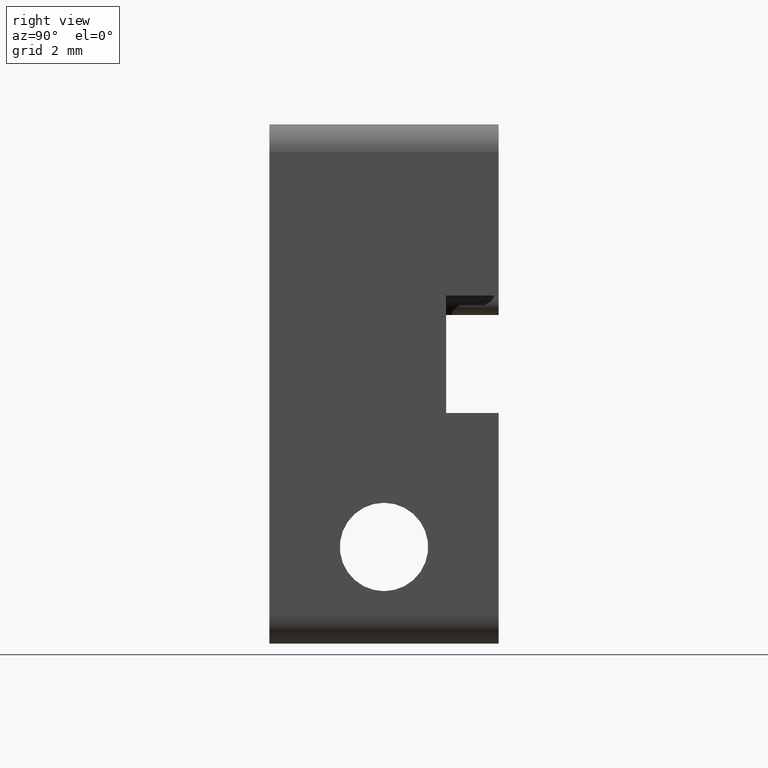
[diagram: clean part render]
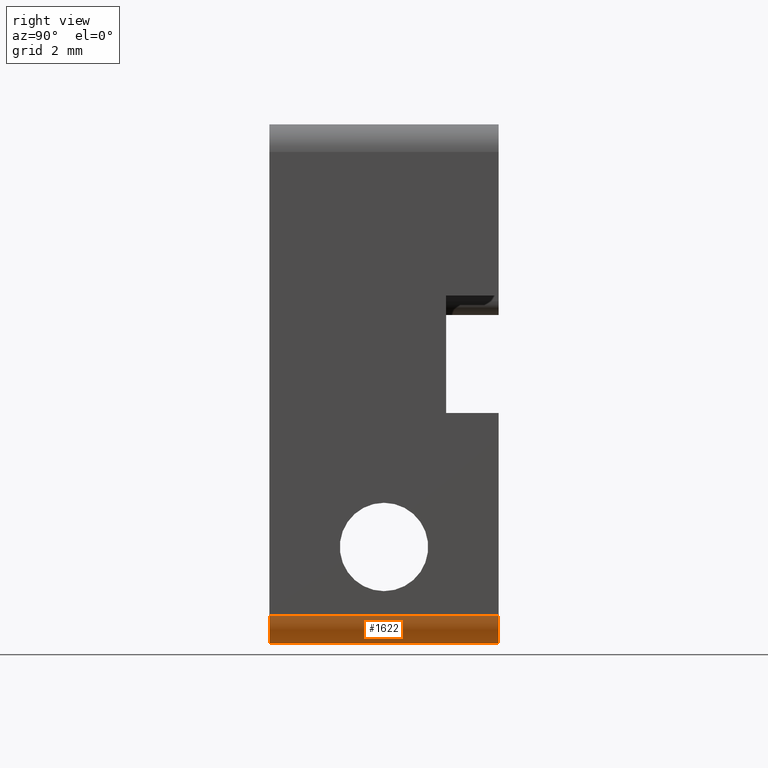
[diagram: same view with one face highlighted and labeled with its STEP entity id]
A machine part, right view. The second image highlights one B-rep face of the part: STEP entity #1622.
In plain terms, the highlighted cylindrical surface (edge-blend (fillet) strip) has radius 1 mm, axis along (0, -1, 0).
Its self-contained STEP definition (entity closure, byte-faithful):
#159 = CARTESIAN_POINT ( 'NONE',  ( 7.349999999999995204, 8.300000000000000711, -8.399999999999998579 ) ) ;
#194 = VERTEX_POINT ( 'NONE', #584 ) ;
#195 = ORIENTED_EDGE ( 'NONE', *, *, #1078, .F. ) ;
#273 = EDGE_CURVE ( 'NONE', #575, #2582, #1455, .T. ) ;
#308 = CARTESIAN_POINT ( 'NONE',  ( 7.349999999999995204, 0.000000000000000000, -8.399999999999998579 ) ) ;
#422 = EDGE_CURVE ( 'NONE', #660, #575, #1357, .T. ) ;
#521 = CARTESIAN_POINT ( 'NONE',  ( 7.349999999999995204, 0.000000000000000000, -9.399999999999996803 ) ) ;
#533 = EDGE_CURVE ( 'NONE', #2582, #194, #1430, .T. ) ;
#575 = VERTEX_POINT ( 'NONE', #521 ) ;
#584 = CARTESIAN_POINT ( 'NONE',  ( 8.349999999999999645, 8.300000000000000711, -8.399999999999998579 ) ) ;
#634 = DIRECTION ( 'NONE',  ( 0.000000000000000000, 1.000000000000000000, 0.000000000000000000 ) ) ;
#651 = DIRECTION ( 'NONE',  ( 0.000000000000000000, 0.000000000000000000, -1.000000000000000000 ) ) ;
#660 = VERTEX_POINT ( 'NONE', #1537 ) ;
#698 = AXIS2_PLACEMENT_3D ( 'NONE', #2026, #2788, #651 ) ;
#705 = ORIENTED_EDGE ( 'NONE', *, *, #273, .F. ) ;
#881 = CYLINDRICAL_SURFACE ( 'NONE', #698, 1.000000000000000888 ) ;
#948 = CARTESIAN_POINT ( 'NONE',  ( 8.349999999999999645, 8.300000000000000711, -8.399999999999998579 ) ) ;
#1026 = DIRECTION ( 'NONE',  ( -0.000000000000000000, -1.000000000000000000, -0.000000000000000000 ) ) ;
#1078 = EDGE_CURVE ( 'NONE', #194, #660, #1935, .T. ) ;
#1357 = LINE ( 'NONE', #2060, #2646 ) ;
#1430 = LINE ( 'NONE', #948, #1950 ) ;
#1455 = CIRCLE ( 'NONE', #2860, 1.000000000000000000 ) ;
#1537 = CARTESIAN_POINT ( 'NONE',  ( 7.349999999999995204, 8.300000000000000711, -9.399999999999996803 ) ) ;
#1622 = ADVANCED_FACE ( 'NONE', ( #3018 ), #881, .T. ) ;
#1694 = ORIENTED_EDGE ( 'NONE', *, *, #422, .F. ) ;
#1935 = CIRCLE ( 'NONE', #2845, 1.000000000000000000 ) ;
#1950 = VECTOR ( 'NONE', #2144, 1000.000000000000000 ) ;
#2026 = CARTESIAN_POINT ( 'NONE',  ( 7.349999999999995204, 8.300000000000000711, -8.399999999999998579 ) ) ;
#2060 = CARTESIAN_POINT ( 'NONE',  ( 7.349999999999995204, 8.300000000000000711, -9.399999999999996803 ) ) ;
#2144 = DIRECTION ( 'NONE',  ( -0.000000000000000000, 1.000000000000000000, -0.000000000000000000 ) ) ;
#2500 = DIRECTION ( 'NONE',  ( 0.000000000000000000, 0.000000000000000000, 1.000000000000000000 ) ) ;
#2582 = VERTEX_POINT ( 'NONE', #3078 ) ;
#2646 = VECTOR ( 'NONE', #3007, 1000.000000000000000 ) ;
#2788 = DIRECTION ( 'NONE',  ( 0.000000000000000000, -1.000000000000000000, 0.000000000000000000 ) ) ;
#2845 = AXIS2_PLACEMENT_3D ( 'NONE', #159, #634, #2500 ) ;
#2860 = AXIS2_PLACEMENT_3D ( 'NONE', #308, #1026, #2928 ) ;
#2927 = EDGE_LOOP ( 'NONE', ( #195, #2949, #705, #1694 ) ) ;
#2928 = DIRECTION ( 'NONE',  ( 0.000000000000000000, 0.000000000000000000, 1.000000000000000000 ) ) ;
#2949 = ORIENTED_EDGE ( 'NONE', *, *, #533, .F. ) ;
#3007 = DIRECTION ( 'NONE',  ( 0.000000000000000000, -1.000000000000000000, 0.000000000000000000 ) ) ;
#3018 = FACE_OUTER_BOUND ( 'NONE', #2927, .T. ) ;
#3078 = CARTESIAN_POINT ( 'NONE',  ( 8.349999999999999645, 0.000000000000000000, -8.399999999999998579 ) ) ;